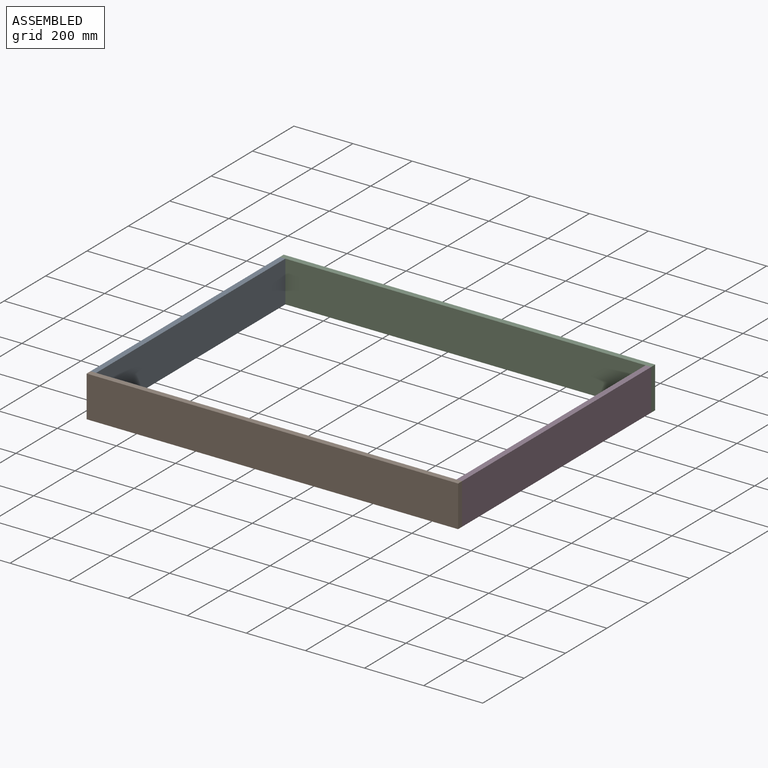
[diagram: assembled view]
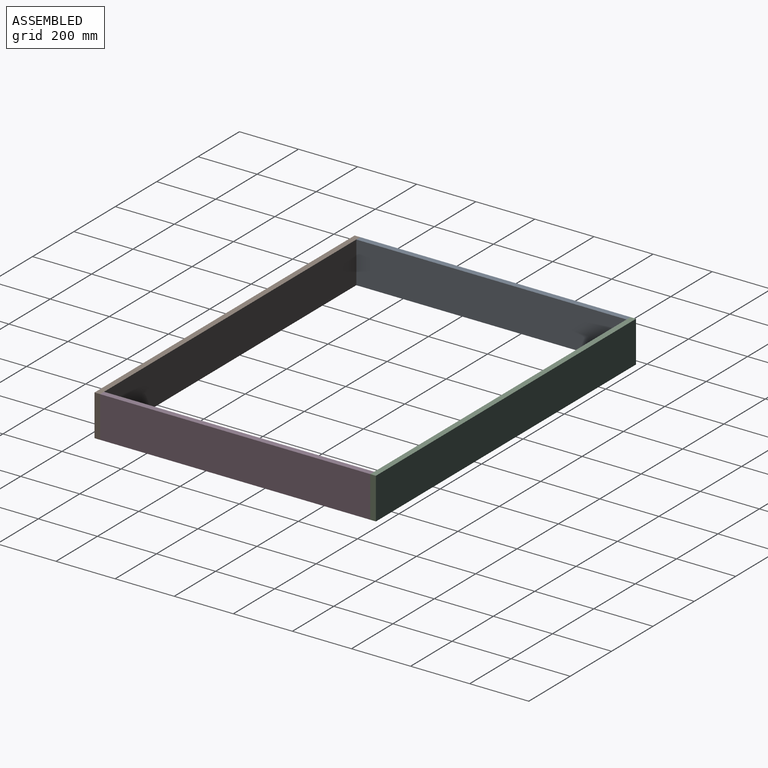
[diagram: assembled view, second angle]
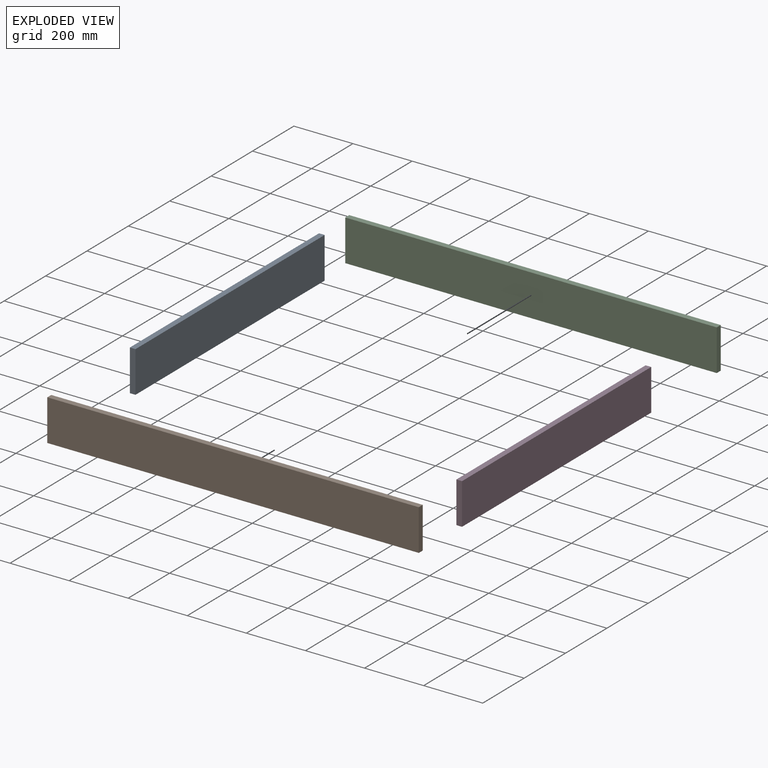
[diagram: exploded view]
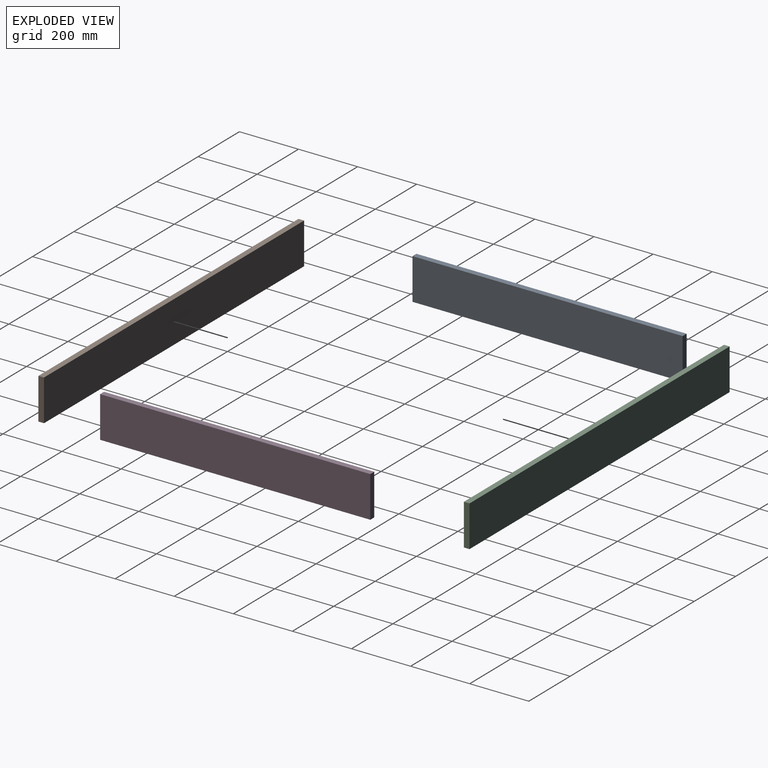
[diagram: exploded view, second angle]
ASSEMBLY  parts=4 mates=3
PART A: 6 faces, bbox 914.4x19.1x139.7 mm
  f0: plane 914.4x19.05mm, normal (0,0,1), area 17419.3mm2, adj f1,f3,f4,f5
  f1: plane 914.4x139.7mm, normal (0,-1,0), area 127741.7mm2, adj f0,f2,f4,f5
  f2: plane 914.4x19.05mm, normal (0,0,-1), area 17419.3mm2, adj f1,f3,f4,f5
  f3: plane 914.4x139.7mm, normal (0,1,0), area 127741.7mm2, adj f0,f2,f4,f5
  f4: plane 139.7x19.05mm, normal (1,0,0), area 2661.3mm2, adj f0,f1,f2,f3
  f5: plane 139.7x19.05mm, normal (-1,0,0), area 2661.3mm2, adj f0,f1,f2,f3
PART B: 6 faces, bbox 1257.3x19.1x139.7 mm
  f0: plane 1257.3x19.05mm, normal (0,0,1), area 23951.6mm2, adj f1,f3,f4,f5
  f1: plane 1257.3x139.7mm, normal (0,-1,0), area 175644.8mm2, adj f0,f2,f4,f5
  f2: plane 1257.3x19.05mm, normal (0,0,-1), area 23951.6mm2, adj f1,f3,f4,f5
  f3: plane 1257.3x139.7mm, normal (0,1,0), area 175644.8mm2, adj f0,f2,f4,f5
  f4: plane 139.7x19.05mm, normal (1,0,0), area 2661.3mm2, adj f0,f1,f2,f3
  f5: plane 139.7x19.05mm, normal (-1,0,0), area 2661.3mm2, adj f0,f1,f2,f3
PART C: same geometry as B
PART D: same geometry as A
PLACE A rot(axis=(0,0,-1),90deg) t=(-519.24,-270.3,89.38)mm
PLACE B t=(90.36,-727.5,89.38)mm
PLACE C t=(90.36,205.95,89.38)mm
PLACE D rot(axis=(0,0,1),90deg) t=(699.96,-270.3,89.38)mm
MATE fastened D.f4 <-> C.f1  axis (0,1,0) through (719.01,186.9,159.23)mm
MATE fastened A.f4 <-> B.f3  axis (0,-1,0) through (-538.29,-727.5,159.23)mm
MATE fastened D.f5 <-> B.f3  axis (0,-1,0) through (719.01,-727.5,159.23)mm
